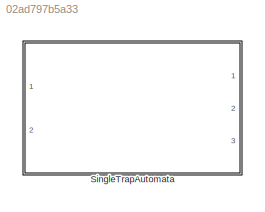
MODEL slx_02ad797b5a33
KIND library
CONFIG AbsTol = auto
CONFIG EnableMultiTasking = off
CONFIG FixedStep = auto
CONFIG MaxStep = auto
CONFIG MinStep = auto
CONFIG RelTol = 1e-3
CONFIG SampleTimeConstraint = Unconstrained
CONFIG Solver = VariableStepAuto
CONFIG SolverName = VariableStepAuto
CONFIG StartTime = 0.0
CONFIG StopTime = 10.0
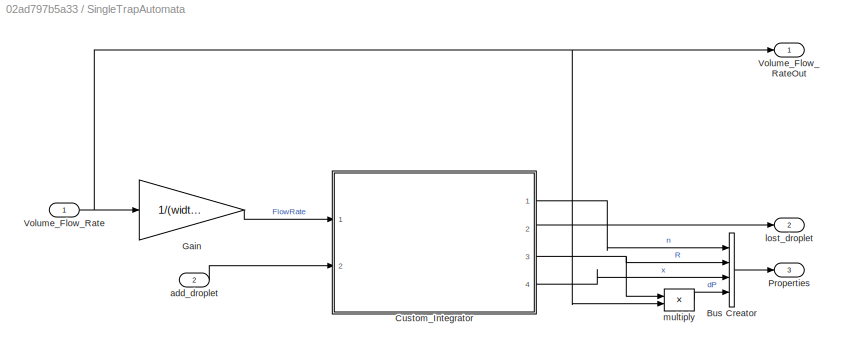
BLOCK [SubSystem] SingleTrapAutomata
  Ports = [2, 3]
  RequestExecContextInheritance = off
BLOCK [BusCreator] SingleTrapAutomata/Bus Creator
  DisplayOption = bar
  InheritFromInputs = on
  Inputs = 4
  Ports = [4, 1]
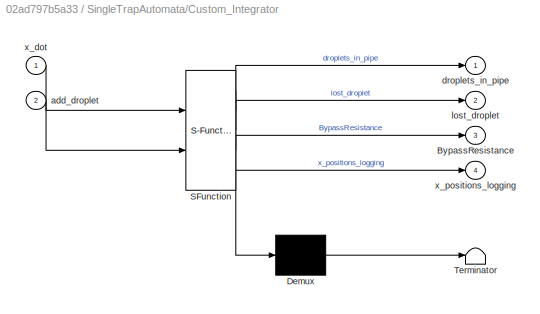
BLOCK [SubSystem] SingleTrapAutomata/Custom_Integrator
  ErrorFcn = Stateflow.Translate.translate
  PermitHierarchicalResolution = ExplicitOnly
  Ports = [2, 4]
  RequestExecContextInheritance = off
  SFBlockType = MATLAB Function
  TreatAsAtomicUnit = on
BLOCK [Demux] SingleTrapAutomata/Custom_Integrator/ Demux 
  Outputs = 1
  Ports = [1, 1]
BLOCK [S-Function] SingleTrapAutomata/Custom_Integrator/ SFunction 
  EnableBusSupport = on
  FunctionName = sf_sfun
  Parameters = Rc,Rd,Rtrap,dt,upper_Limit
  PortCounts = [2 5]
  Ports = [2, 5]
  SFcnIsStateOwnerBlock = off
  SFunctionDeploymentMode = off
  Tag = Stateflow S-Function Trap_lib 1
BLOCK [Terminator] SingleTrapAutomata/Custom_Integrator/ Terminator 
BLOCK [Outport] SingleTrapAutomata/Custom_Integrator/BypassResistance
  IconDisplay = Port number
  Port = 3
BLOCK [Inport] SingleTrapAutomata/Custom_Integrator/add_droplet
  IconDisplay = Port number
  Port = 2
BLOCK [Outport] SingleTrapAutomata/Custom_Integrator/droplets_in_pipe
  IconDisplay = Port number
BLOCK [Outport] SingleTrapAutomata/Custom_Integrator/lost_droplet
  IconDisplay = Port number
  Port = 2
BLOCK [Inport] SingleTrapAutomata/Custom_Integrator/x_dot
  IconDisplay = Port number
BLOCK [Outport] SingleTrapAutomata/Custom_Integrator/x_positions_logging
  IconDisplay = Port number
  Port = 4
BLOCK [Gain] SingleTrapAutomata/Gain
  Gain = 1/(width*height)
  OutDataTypeStr = Inherit: Inherit via internal rule
  ParamDataTypeStr = Inherit: Inherit via internal rule
  SaturateOnIntegerOverflow = off
BLOCK [Outport] SingleTrapAutomata/Properties
  IconDisplay = Port number
  Port = 3
BLOCK [Inport] SingleTrapAutomata/Volume_Flow_Rate
  IconDisplay = Port number
BLOCK [Outport] SingleTrapAutomata/Volume_Flow_RateOut
  IconDisplay = Port number
BLOCK [Inport] SingleTrapAutomata/add_droplet
  IconDisplay = Port number
  Port = 2
BLOCK [Outport] SingleTrapAutomata/lost_droplet
  IconDisplay = Port number
  Port = 2
BLOCK [Product] SingleTrapAutomata/multiply
  InputSameDT = off
  Inputs = **
  OutDataTypeStr = Inherit: Inherit via internal rule
  Ports = [2, 1]
  RndMeth = Floor
  SaturateOnIntegerOverflow = off
LINE SingleTrapAutomata/Bus Creator:1 -> SingleTrapAutomata/Properties:1
LINE SingleTrapAutomata/Custom_Integrator:1 -> SingleTrapAutomata/Bus Creator:1
LINE SingleTrapAutomata/Custom_Integrator:2 -> SingleTrapAutomata/lost_droplet:1
NET SingleTrapAutomata/Custom_Integrator:3 -> SingleTrapAutomata/Bus Creator:2, SingleTrapAutomata/multiply:1
LINE SingleTrapAutomata/Custom_Integrator:4 -> SingleTrapAutomata/Bus Creator:3
LINE SingleTrapAutomata/Gain:1 -> SingleTrapAutomata/Custom_Integrator:1
NET SingleTrapAutomata/Volume_Flow_Rate:1 -> SingleTrapAutomata/Gain:1, SingleTrapAutomata/Volume_Flow_RateOut:1, SingleTrapAutomata/multiply:2
LINE SingleTrapAutomata/add_droplet:1 -> SingleTrapAutomata/Custom_Integrator:2
LINE SingleTrapAutomata/multiply:1 -> SingleTrapAutomata/Bus Creator:4
note: NET lines group one-source signal fan-out (src -> all destinations, sorted); 1:1 wires keep LINE
CHART SingleTrapAutomata/Custom_Integrator states=1 transitions=1
  STATE_LABEL 'eML_blk_kernel()'
  STATE_LABEL 'SCRIPT:\nfunction [droplets_in_pipe, lost_droplet, BypassResistance, x_positions_logging] = fcn(x_dot, dt, add_droplet, upper_Limit, Rc, Rd, Rtrap)\n\n%% declare persistent memory/internal state\npersistent x_state\npersistent trap_state\npersistent number_droplet\n%% initalize internal state/memory \nif (isempty(x_state))\n    x_state = [];\nend\nif (isempty(number_droplet))\n    number_droplet = 0;\nend\nif (...<+1527ch>'
